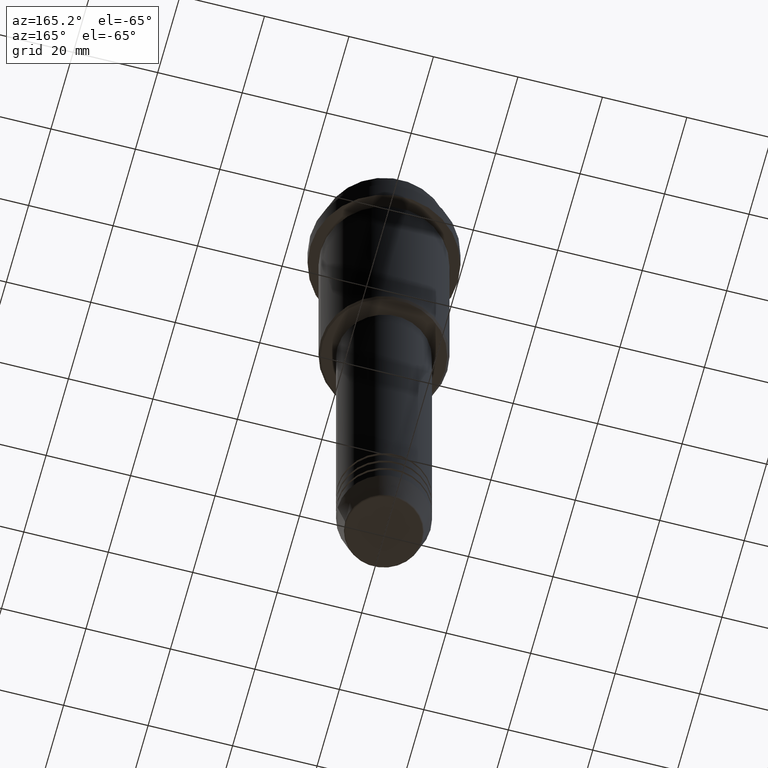
[diagram: clean part render]
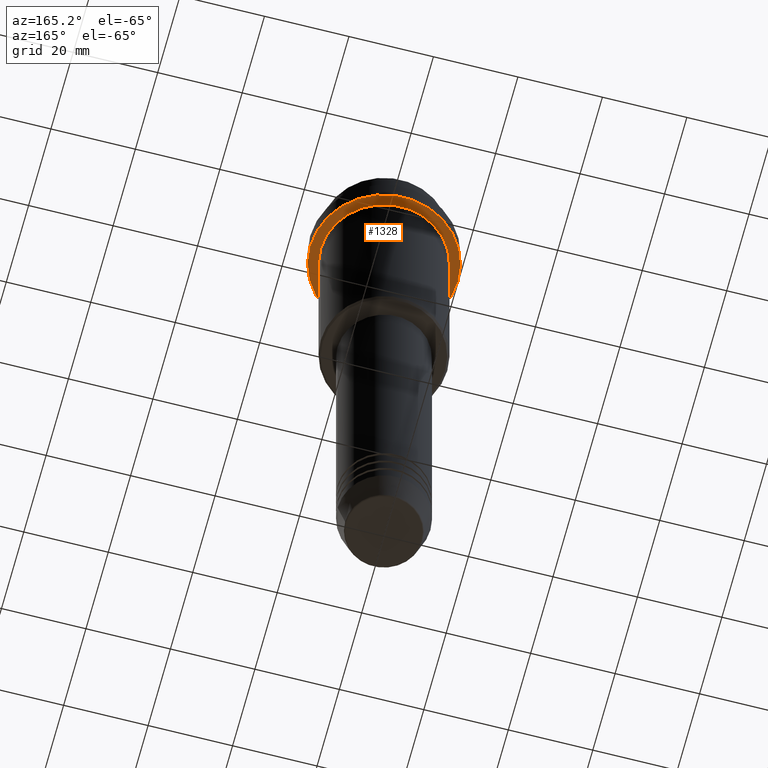
[diagram: same view with one face highlighted and labeled with its STEP entity id]
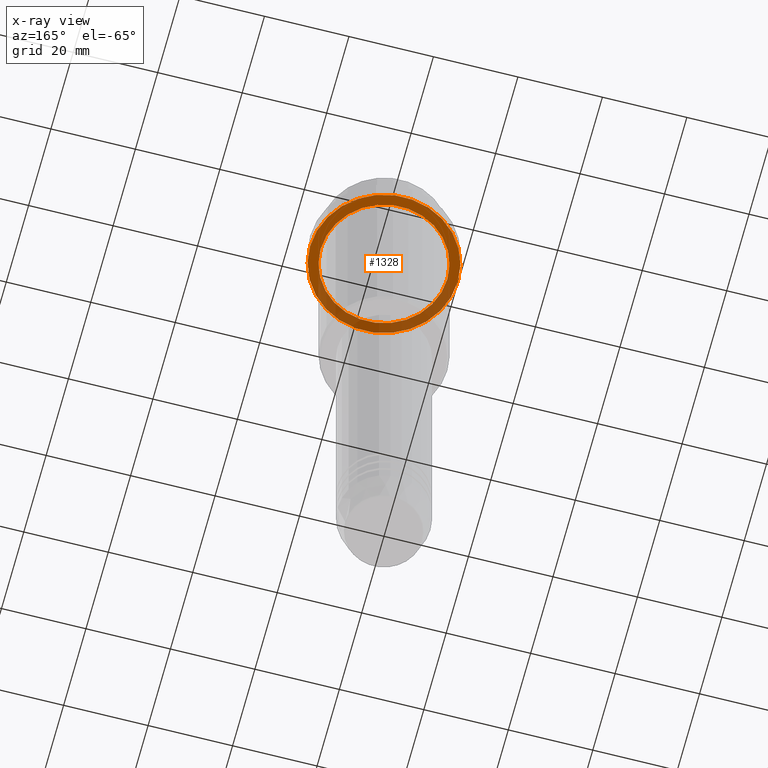
[diagram: x-ray of the same camera — body ghosted, the highlighted face saturated]
A machine part, auxiliary view. The second image highlights one B-rep face of the part: STEP entity #1328.
The next image is the same camera in x-ray: the body ghosted, the highlighted face saturated — about 37% of this face is hidden behind the body in this view.
In plain terms, the highlighted planar face has unit normal (0, 0, -1).
Its self-contained STEP definition (entity closure, byte-faithful):
#68 = DIRECTION ( 'NONE',  ( -0.000000000000000000, -0.000000000000000000, 1.000000000000000000 ) ) ;
#140 = VERTEX_POINT ( 'NONE', #1031 ) ;
#193 = ORIENTED_EDGE ( 'NONE', *, *, #217, .F. ) ;
#198 = DIRECTION ( 'NONE',  ( 1.000000000000000000, 0.000000000000000000, 0.000000000000000000 ) ) ;
#217 = EDGE_CURVE ( 'NONE', #712, #1270, #566, .T. ) ;
#250 = CIRCLE ( 'NONE', #932, 14.99999999999999467 ) ;
#265 = CARTESIAN_POINT ( 'NONE',  ( 17.50000000000000000, 0.000000000000000000, -15.00000000000000000 ) ) ;
#290 = CARTESIAN_POINT ( 'NONE',  ( 0.000000000000000000, 0.000000000000000000, -15.00000000000000000 ) ) ;
#297 = FACE_OUTER_BOUND ( 'NONE', #1140, .T. ) ;
#394 = DIRECTION ( 'NONE',  ( 1.000000000000000000, 0.000000000000000000, 0.000000000000000000 ) ) ;
#395 = DIRECTION ( 'NONE',  ( -1.000000000000000000, 0.000000000000000000, 0.000000000000000000 ) ) ;
#424 = DIRECTION ( 'NONE',  ( 0.000000000000000000, 0.000000000000000000, -1.000000000000000000 ) ) ;
#491 = CARTESIAN_POINT ( 'NONE',  ( 0.000000000000000000, 0.000000000000000000, -15.00000000000000000 ) ) ;
#516 = PLANE ( 'NONE',  #981 ) ;
#560 = EDGE_CURVE ( 'NONE', #1270, #712, #1381, .T. ) ;
#566 = CIRCLE ( 'NONE', #1362, 17.50000000000000000 ) ;
#712 = VERTEX_POINT ( 'NONE', #265 ) ;
#764 = EDGE_CURVE ( 'NONE', #140, #1022, #1323, .T. ) ;
#848 = DIRECTION ( 'NONE',  ( -1.000000000000000000, 0.000000000000000000, -0.000000000000000000 ) ) ;
#858 = CARTESIAN_POINT ( 'NONE',  ( 0.000000000000000000, 0.000000000000000000, -15.00000000000000000 ) ) ;
#932 = AXIS2_PLACEMENT_3D ( 'NONE', #290, #68, #395 ) ;
#937 = EDGE_LOOP ( 'NONE', ( #1239, #1235 ) ) ;
#975 = CARTESIAN_POINT ( 'NONE',  ( 0.000000000000000000, 17.50000000000000000, -15.00000000000000000 ) ) ;
#981 = AXIS2_PLACEMENT_3D ( 'NONE', #975, #424, #848 ) ;
#1000 = AXIS2_PLACEMENT_3D ( 'NONE', #491, #1141, #1056 ) ;
#1006 = CARTESIAN_POINT ( 'NONE',  ( 0.000000000000000000, 0.000000000000000000, -15.00000000000000000 ) ) ;
#1022 = VERTEX_POINT ( 'NONE', #1168 ) ;
#1031 = CARTESIAN_POINT ( 'NONE',  ( -14.99999999999999467, 0.000000000000000000, -15.00000000000000000 ) ) ;
#1056 = DIRECTION ( 'NONE',  ( -1.000000000000000000, 0.000000000000000000, 0.000000000000000000 ) ) ;
#1083 = FACE_BOUND ( 'NONE', #937, .T. ) ;
#1128 = CARTESIAN_POINT ( 'NONE',  ( -17.50000000000000000, 2.143131898507868248E-15, -15.00000000000000000 ) ) ;
#1140 = EDGE_LOOP ( 'NONE', ( #193, #1144 ) ) ;
#1141 = DIRECTION ( 'NONE',  ( -0.000000000000000000, -0.000000000000000000, 1.000000000000000000 ) ) ;
#1144 = ORIENTED_EDGE ( 'NONE', *, *, #560, .F. ) ;
#1168 = CARTESIAN_POINT ( 'NONE',  ( 14.99999999999999467, 1.836970198721029194E-15, -15.00000000000000000 ) ) ;
#1227 = AXIS2_PLACEMENT_3D ( 'NONE', #1006, #1368, #394 ) ;
#1235 = ORIENTED_EDGE ( 'NONE', *, *, #1244, .T. ) ;
#1239 = ORIENTED_EDGE ( 'NONE', *, *, #764, .T. ) ;
#1244 = EDGE_CURVE ( 'NONE', #1022, #140, #250, .T. ) ;
#1270 = VERTEX_POINT ( 'NONE', #1128 ) ;
#1323 = CIRCLE ( 'NONE', #1000, 14.99999999999999467 ) ;
#1328 = ADVANCED_FACE ( 'NONE', ( #1083, #297 ), #516, .T. ) ;
#1362 = AXIS2_PLACEMENT_3D ( 'NONE', #858, #1397, #198 ) ;
#1368 = DIRECTION ( 'NONE',  ( -0.000000000000000000, -0.000000000000000000, 1.000000000000000000 ) ) ;
#1381 = CIRCLE ( 'NONE', #1227, 17.50000000000000000 ) ;
#1397 = DIRECTION ( 'NONE',  ( -0.000000000000000000, -0.000000000000000000, 1.000000000000000000 ) ) ;